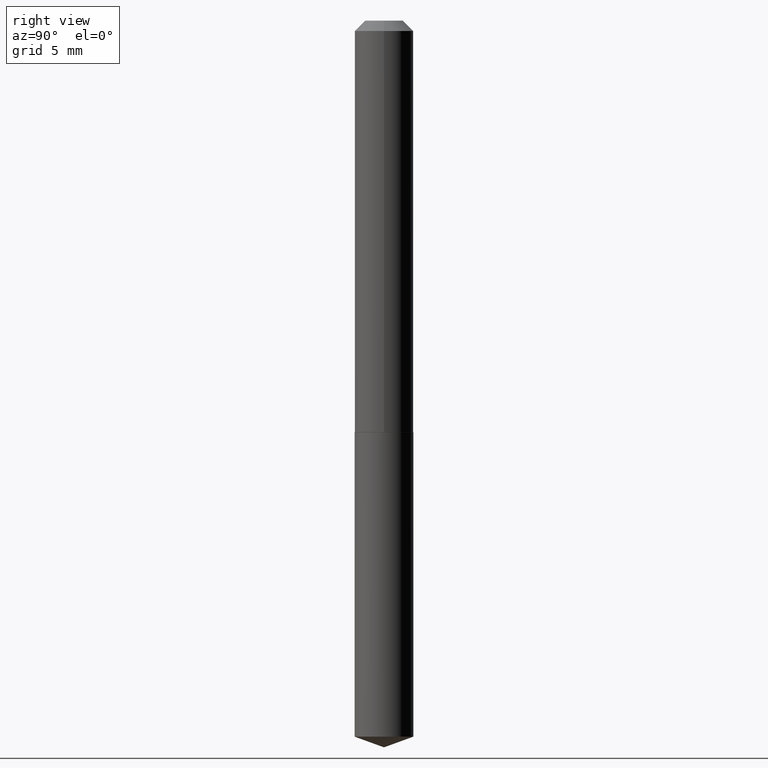
[diagram: clean part render]
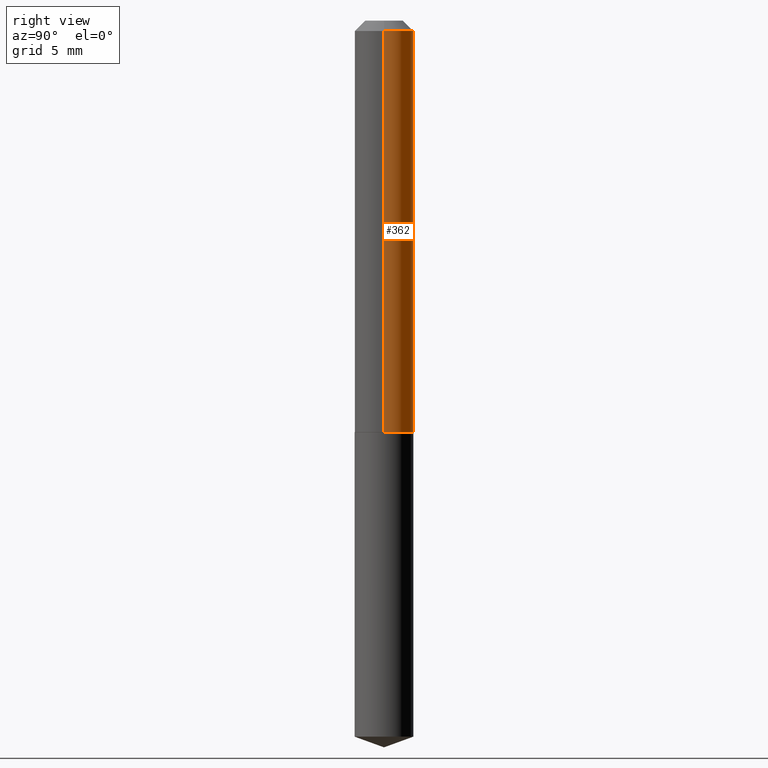
[diagram: same view with one face highlighted and labeled with its STEP entity id]
A machine part, right view. The second image highlights one B-rep face of the part: STEP entity #362.
In plain terms, the highlighted cylindrical surface (edge-blend (fillet) strip) has radius 2.2479 mm, axis along (-0, 0, 1).
Its self-contained STEP definition (entity closure, byte-faithful):
#13 = LINE ( 'NONE', #157, #26 ) ;
#15 = ORIENTED_EDGE ( 'NONE', *, *, #354, .T. ) ;
#26 = VECTOR ( 'NONE', #365, 39.37007874015748143 ) ;
#32 = CARTESIAN_POINT ( 'NONE',  ( 0.08850000000000013411, -4.943937575801893744E-15, -1.239000000000000323 ) ) ;
#39 = VERTEX_POINT ( 'NONE', #142 ) ;
#49 = AXIS2_PLACEMENT_3D ( 'NONE', #209, #78, #104 ) ;
#60 = FACE_OUTER_BOUND ( 'NONE', #162, .T. ) ;
#62 = DIRECTION ( 'NONE',  ( -2.445468806185136597E-29, 3.491481338843145583E-15, 1.000000000000000000 ) ) ;
#68 = CARTESIAN_POINT ( 'NONE',  ( -0.08850000000000013411, -3.697115057678968987E-15, -1.239000000000000323 ) ) ;
#78 = DIRECTION ( 'NONE',  ( -2.445468806185136597E-29, 3.491481338843145583E-15, 1.000000000000000000 ) ) ;
#81 = CIRCLE ( 'NONE', #358, 0.08849999999999999534 ) ;
#82 = ORIENTED_EDGE ( 'NONE', *, *, #99, .T. ) ;
#90 = CARTESIAN_POINT ( 'NONE',  ( 7.642090019328602662E-31, -1.091087918388490267E-16, -0.03125000000000020817 ) ) ;
#99 = EDGE_CURVE ( 'NONE', #218, #247, #123, .T. ) ;
#104 = DIRECTION ( 'NONE',  ( 1.000000000000000000, -6.982962677686261977E-15, 0.000000000000000000 ) ) ;
#123 = CIRCLE ( 'NONE', #49, 0.08850000000000013411 ) ;
#142 = CARTESIAN_POINT ( 'NONE',  ( 0.08849999999999999534, -7.271009888140835507E-16, -0.03125000000000020817 ) ) ;
#150 = CARTESIAN_POINT ( 'NONE',  ( 0.000000000000000000, 0.000000000000000000, 0.000000000000000000 ) ) ;
#157 = CARTESIAN_POINT ( 'NONE',  ( 0.08850000000000006473, -6.179921969752350417E-16, 4.315416446579406428E-30 ) ) ;
#162 = EDGE_LOOP ( 'NONE', ( #82, #15, #379, #225 ) ) ;
#180 = CYLINDRICAL_SURFACE ( 'NONE', #219, 0.08850000000000006473 ) ;
#189 = EDGE_CURVE ( 'NONE', #39, #215, #81, .T. ) ;
#209 = CARTESIAN_POINT ( 'NONE',  ( 3.029935850863385279E-29, -4.325945378826658604E-15, -1.239000000000000323 ) ) ;
#211 = DIRECTION ( 'NONE',  ( -2.445468806185136877E-29, 3.491481338843145188E-15, 1.000000000000000000 ) ) ;
#215 = VERTEX_POINT ( 'NONE', #332 ) ;
#218 = VERTEX_POINT ( 'NONE', #32 ) ;
#219 = AXIS2_PLACEMENT_3D ( 'NONE', #150, #272, #371 ) ;
#225 = ORIENTED_EDGE ( 'NONE', *, *, #324, .F. ) ;
#247 = VERTEX_POINT ( 'NONE', #68 ) ;
#248 = CARTESIAN_POINT ( 'NONE',  ( -0.08850000000000006473, 6.288303211476891244E-16, -4.353257554875594652E-30 ) ) ;
#272 = DIRECTION ( 'NONE',  ( -2.445468806185136597E-29, 3.491481338843145583E-15, 1.000000000000000000 ) ) ;
#275 = LINE ( 'NONE', #248, #348 ) ;
#324 = EDGE_CURVE ( 'NONE', #218, #39, #13, .T. ) ;
#332 = CARTESIAN_POINT ( 'NONE',  ( -0.08849999999999999534, -1.588696764185064235E-15, -0.03125000000000020817 ) ) ;
#339 = DIRECTION ( 'NONE',  ( 1.000000000000000000, -6.982962677686266711E-15, 0.000000000000000000 ) ) ;
#348 = VECTOR ( 'NONE', #211, 39.37007874015748143 ) ;
#354 = EDGE_CURVE ( 'NONE', #247, #215, #275, .T. ) ;
#358 = AXIS2_PLACEMENT_3D ( 'NONE', #90, #62, #339 ) ;
#362 = ADVANCED_FACE ( 'NONE', ( #60 ), #180, .T. ) ;
#365 = DIRECTION ( 'NONE',  ( -2.445468806185136877E-29, 3.491481338843145188E-15, 1.000000000000000000 ) ) ;
#371 = DIRECTION ( 'NONE',  ( 1.000000000000000000, -6.982962677686266711E-15, 4.876176775795935793E-29 ) ) ;
#379 = ORIENTED_EDGE ( 'NONE', *, *, #189, .F. ) ;